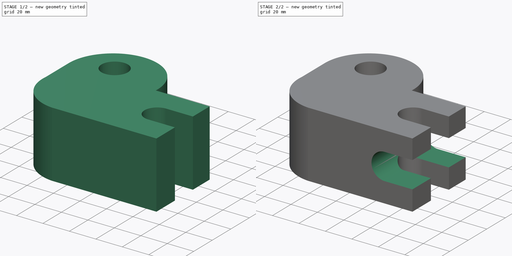
[diagram: build sequence overview — one tinted view per stage of 2, left to right]
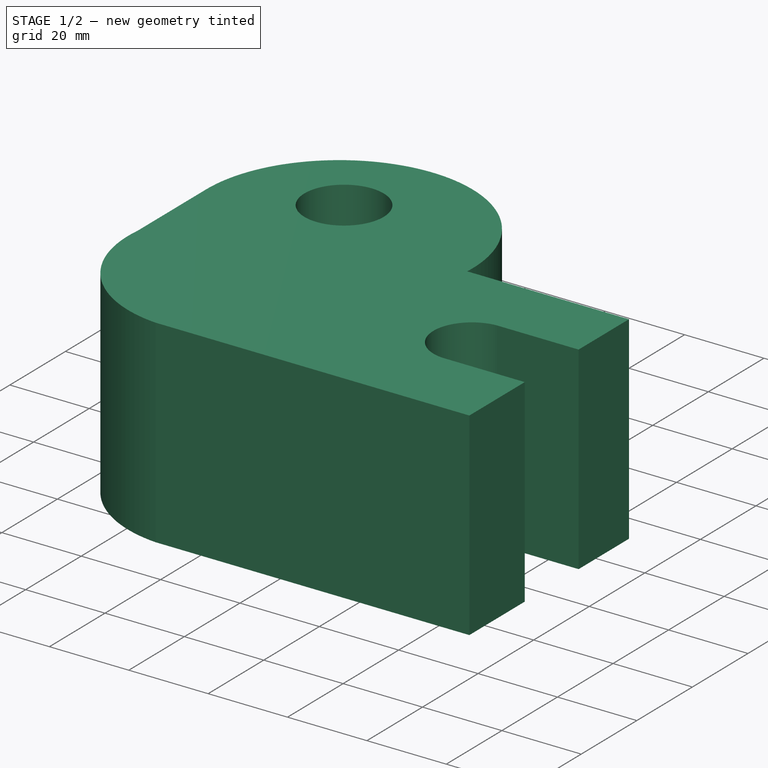
[diagram: stage 1 of 2 — iso view after this stage's code; geometry added in this stage tinted green]
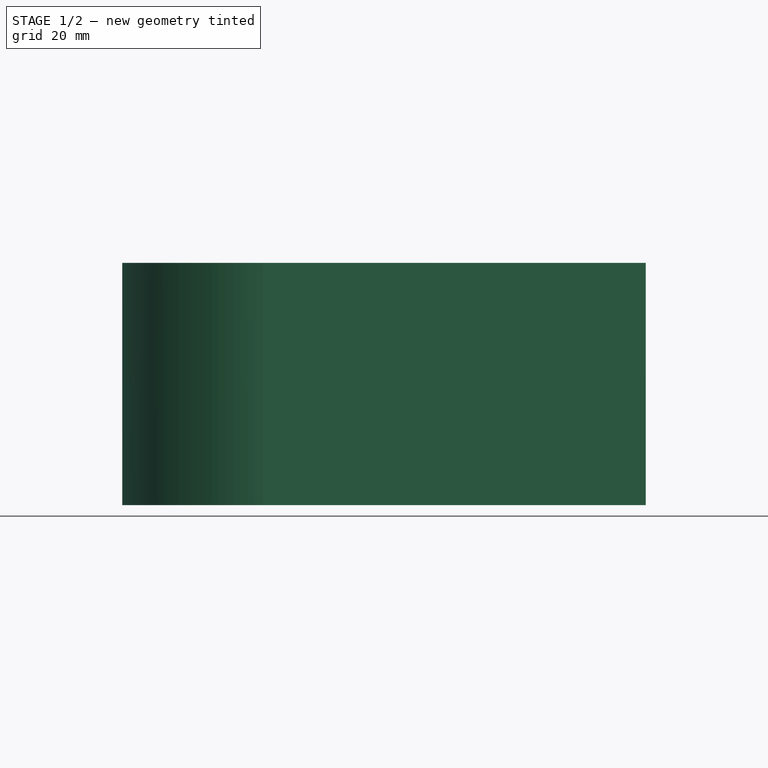
[diagram: stage 1 of 2 — front view after this stage's code; geometry added in this stage tinted green]
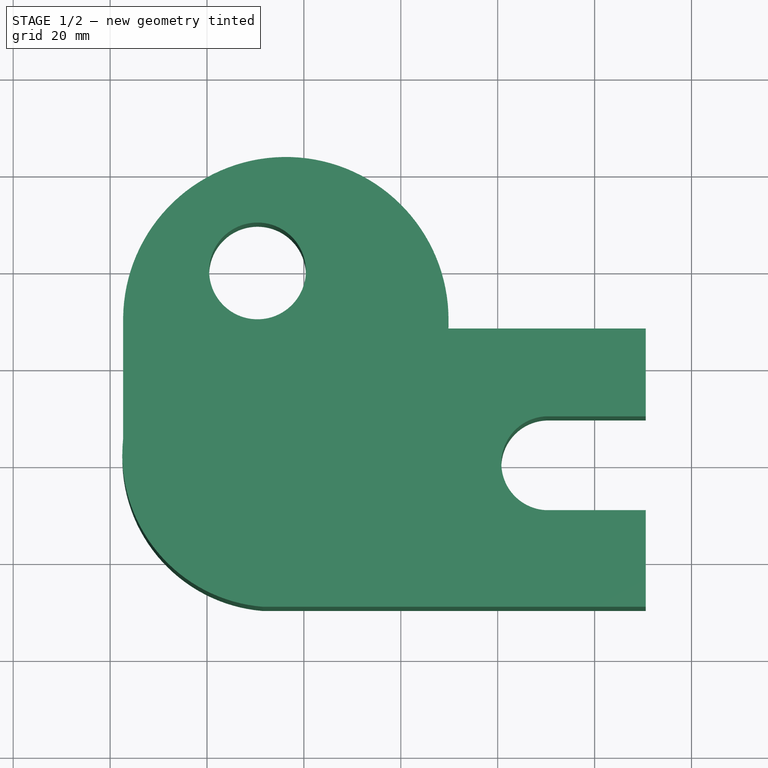
[diagram: stage 1 of 2 — top view after this stage's code; geometry added in this stage tinted green]
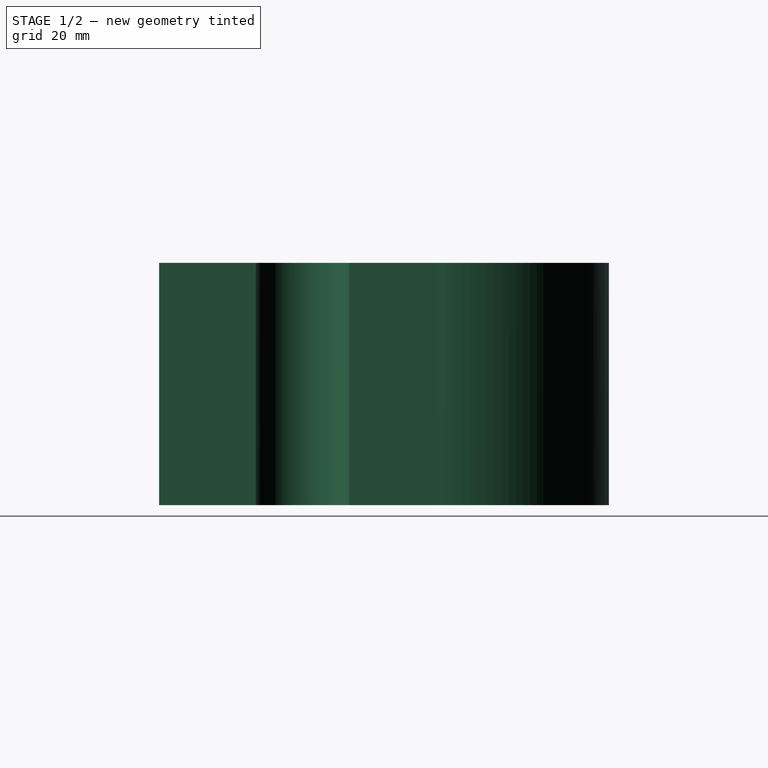
[diagram: stage 1 of 2 — right view after this stage's code; geometry added in this stage tinted green]
FCSTD DOCUMENT  (FreeCAD 0.20R29410 (Git))
Label: elefante_final
License: All rights reserved
LicenseURL: http://en.wikipedia.org/wiki/All_rights_reserved
objects: Sketcher::SketchObject×3, PartDesign::Pocket×2, PartDesign::Pad×1, PartDesign::Body×1
note: 10 computed .brp shape members not serialized (recipe doc carries the construction recipe); baked Part::Feature solids carry a one-line shape summary decoded from their .brp

FEATURE [Sketcher::SketchObject] Sketch
  FullyConstrained = false
  sketch-geometry (7):
    g0: ArcOfCircle CenterX=36.27 CenterY=29.6428 CenterZ=0 NormalX=0 NormalY=0 NormalZ=1 AngleXU=0 Radius=33.5821 StartAngle=6.22848 EndAngle=9.41309
    g1: ArcOfCircle CenterX=34.0614 CenterY=1.80902 CenterZ=0 NormalX=0 NormalY=0 NormalZ=1 AngleXU=0 Radius=31.5417 StartAngle=3.03757 EndAngle=4.63123
    g2: LineSegment StartX=2.69025 StartY=30.0352 StartZ=0 EndX=2.69025 EndY=5.08422 EndZ=0
    g3: LineSegment StartX=31.5044 StartY=-29.6288 StartZ=0 EndX=110.547 EndY=-29.6288 EndZ=0
    g4: LineSegment StartX=69.8019 StartY=27.8066 StartZ=0 EndX=110.547 EndY=27.8066 EndZ=0
    g5: LineSegment StartX=110.547 StartY=27.8066 StartZ=0 EndX=110.547 EndY=-29.6288 EndZ=0
    g6: Circle CenterX=30.4253 CenterY=39.7019 CenterZ=0 NormalX=0 NormalY=0 NormalZ=1 AngleXU=0 Radius=9.98511
  constraints (10):
    c: Vertical(g2)
    c: Horizontal(g3)
    c: Horizontal(g4)
    c: Vertical(g5)
    c: Coincident(g0,g2)
    c: Coincident(g1,g2)
    c: Coincident(g1,g3)
    c: Coincident(g0,g4)
    c: Coincident(g5,g4)
    c: Coincident(g3,g5)
FEATURE [PartDesign::Pad] Pad
  Direction = (0,0,1)
  Length = 50
  Length2 = 10
  Profile = -> Sketch
  ReferenceAxis = -> Sketch [N_Axis]
  Type = 0
FEATURE [Sketcher::SketchObject] Sketch001
  FullyConstrained = false
  MapMode = 5
  Placement = pos=(0,0,50) rot=(0,0,1;0rad)
  Support = -> [Pad]
  sketch-geometry (4):
    g0: ArcOfCircle CenterX=90.4448 CenterY=0 CenterZ=0 NormalX=0 NormalY=0 NormalZ=1 AngleXU=0 Radius=9.69706 StartAngle=1.61718 EndAngle=4.66601
    g1: LineSegment StartX=89.9952 StartY=9.68663 StartZ=0 EndX=119.296 EndY=9.68663 EndZ=0
    g2: LineSegment StartX=119.296 StartY=9.68663 StartZ=0 EndX=119.296 EndY=-9.68663 EndZ=0
    g3: LineSegment StartX=119.296 StartY=-9.68663 StartZ=0 EndX=89.9952 EndY=-9.68663 EndZ=0
  constraints (9):
    c: PointOnObject(g0,g-1)
    c: Horizontal(g1)
    c: Coincident(g1,g2)
    c: Vertical(g2)
    c: Coincident(g2,g3)
    c: Horizontal(g3)
    c: Coincident(g0,g3)
    c: Coincident(g0,g1)
    c: Equal(g1,g3)
FEATURE [PartDesign::Pocket] Pocket
  BaseFeature = -> Pad
  Direction = (0,0,-1)
  Length = 5
  Length2 = 5
  Profile = -> Sketch001
  ReferenceAxis = -> Sketch001 [N_Axis]
  Type = 1
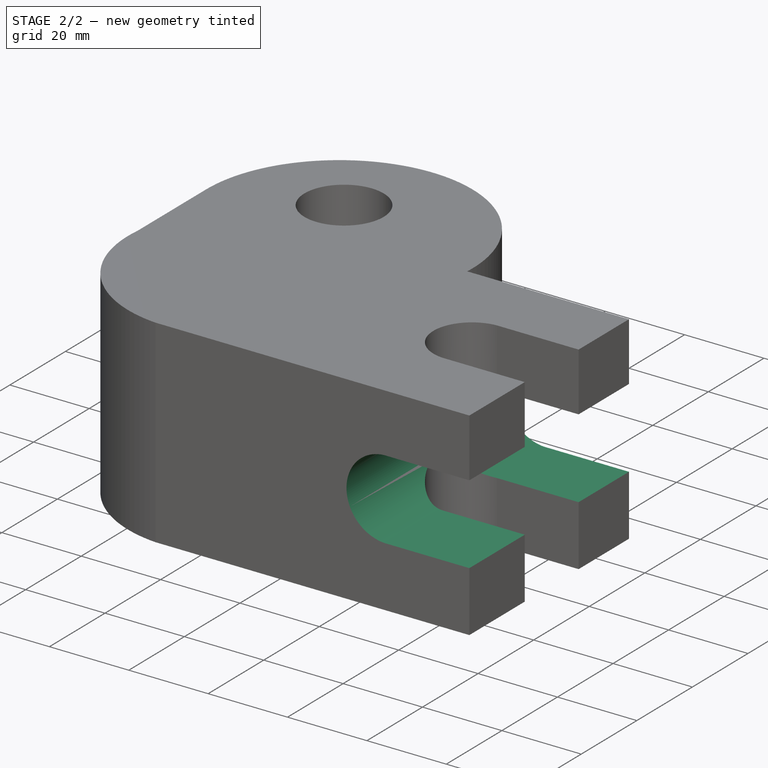
[diagram: stage 2 of 2 — iso view after this stage's code; geometry added in this stage tinted green]
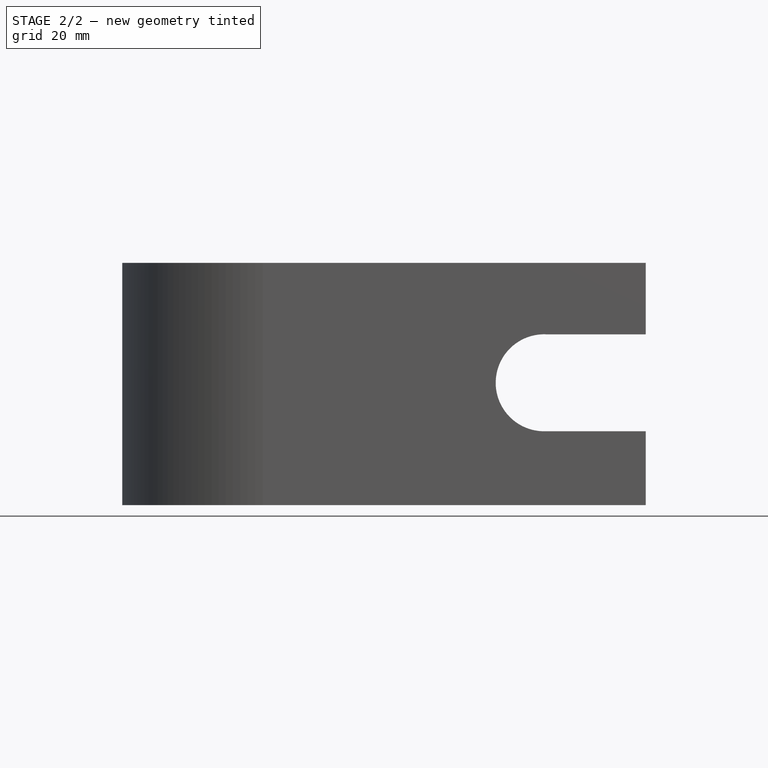
[diagram: stage 2 of 2 — front view after this stage's code; geometry added in this stage tinted green]
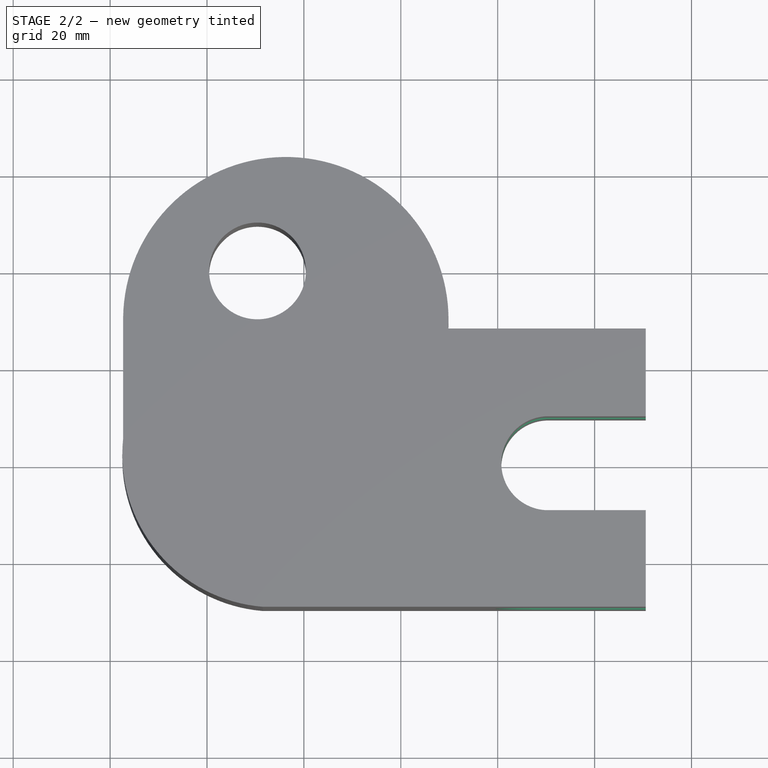
[diagram: stage 2 of 2 — top view after this stage's code; geometry added in this stage tinted green]
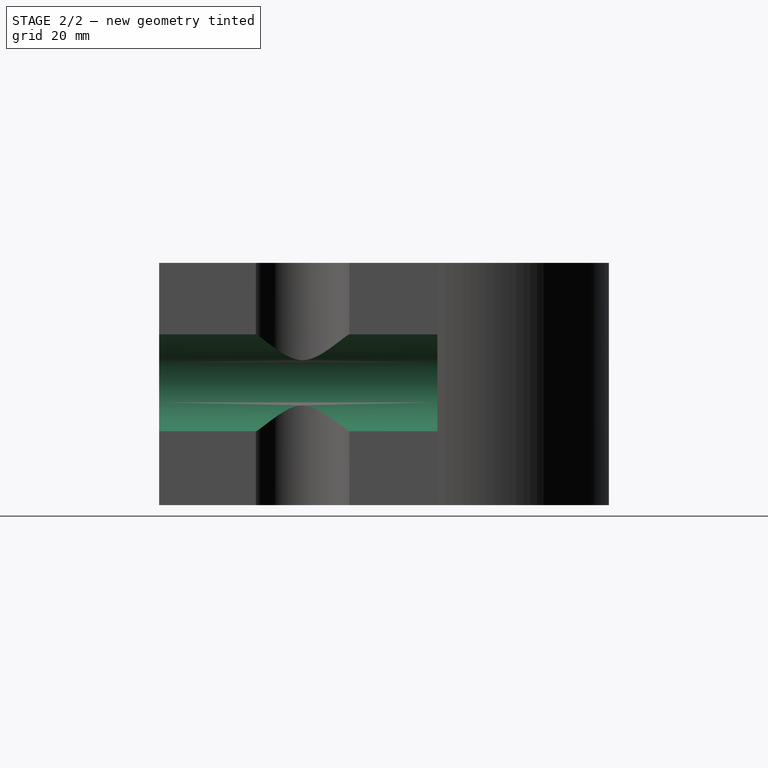
[diagram: stage 2 of 2 — right view after this stage's code; geometry added in this stage tinted green]
FEATURE [Sketcher::SketchObject] Sketch002
  FullyConstrained = false
  MapMode = 5
  Placement = pos=(0,-29.6288,0) rot=(1,0,0;1.5708rad)
  Support = -> [Pocket]
  sketch-geometry (4):
    g0: ArcOfCircle CenterX=89.5986 CenterY=25.2506 CenterZ=0 NormalX=0 NormalY=0 NormalZ=1 AngleXU=0 Radius=10.0115 StartAngle=1.51905 EndAngle=4.74934
    g1: LineSegment StartX=90.1164 StartY=35.2487 StartZ=0 EndX=121.414 EndY=35.2487 EndZ=0
    g2: LineSegment StartX=121.414 StartY=35.2487 StartZ=0 EndX=121.414 EndY=15.2459 EndZ=0
    g3: LineSegment StartX=121.414 StartY=15.2459 StartZ=0 EndX=89.9684 EndY=15.2459 EndZ=0
  constraints (7):
    c: Horizontal(g1)
    c: Coincident(g1,g2)
    c: Vertical(g2)
    c: Coincident(g2,g3)
    c: Horizontal(g3)
    c: Coincident(g0,g1)
    c: Coincident(g0,g3)
FEATURE [PartDesign::Pocket] Pocket001
  BaseFeature = -> Pocket
  Direction = (0,1,-2e-16)
  Length = 5
  Length2 = 5
  Profile = -> Sketch002
  ReferenceAxis = -> Sketch002 [N_Axis]
  Type = 1
FEATURE [PartDesign::Body] Body
  Group = -> [Sketch,Pad,Sketch001,Pocket,Sketch002,Pocket001]
  Origin = -> Origin
  Tip = -> Pocket001
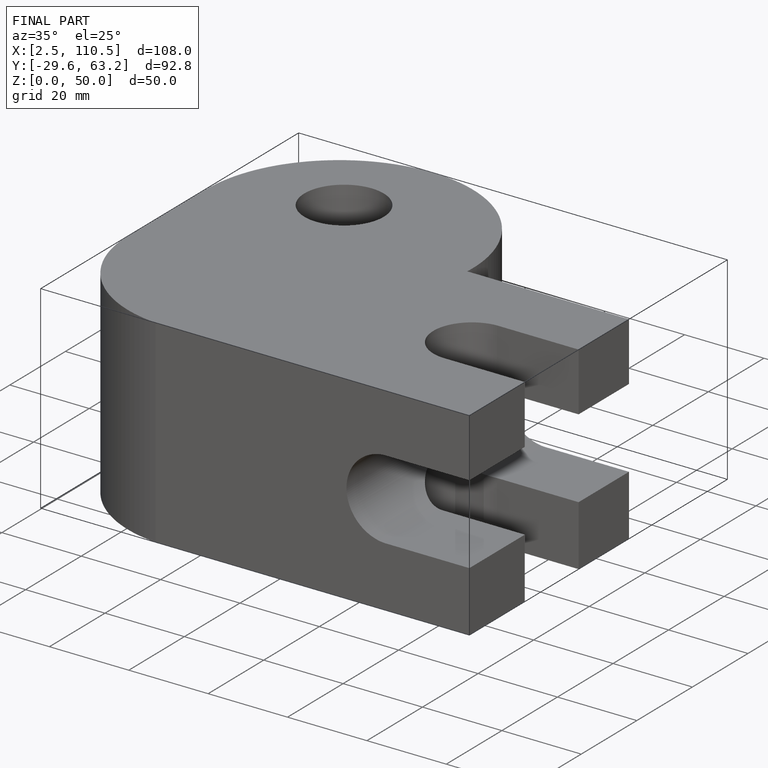
[diagram: finished part — iso view with bounding-box wireframe]
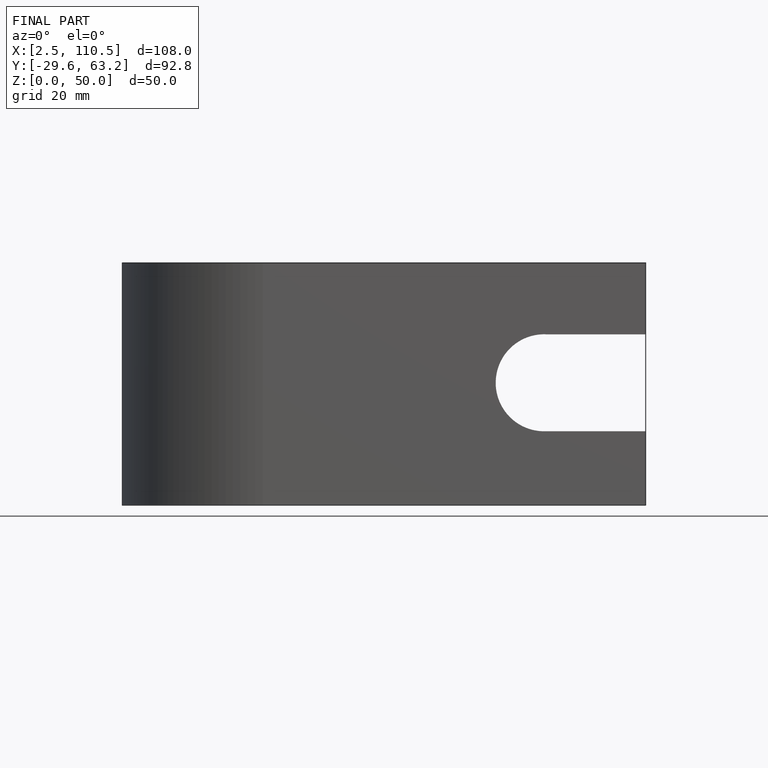
[diagram: finished part — front view with bounding-box wireframe]
